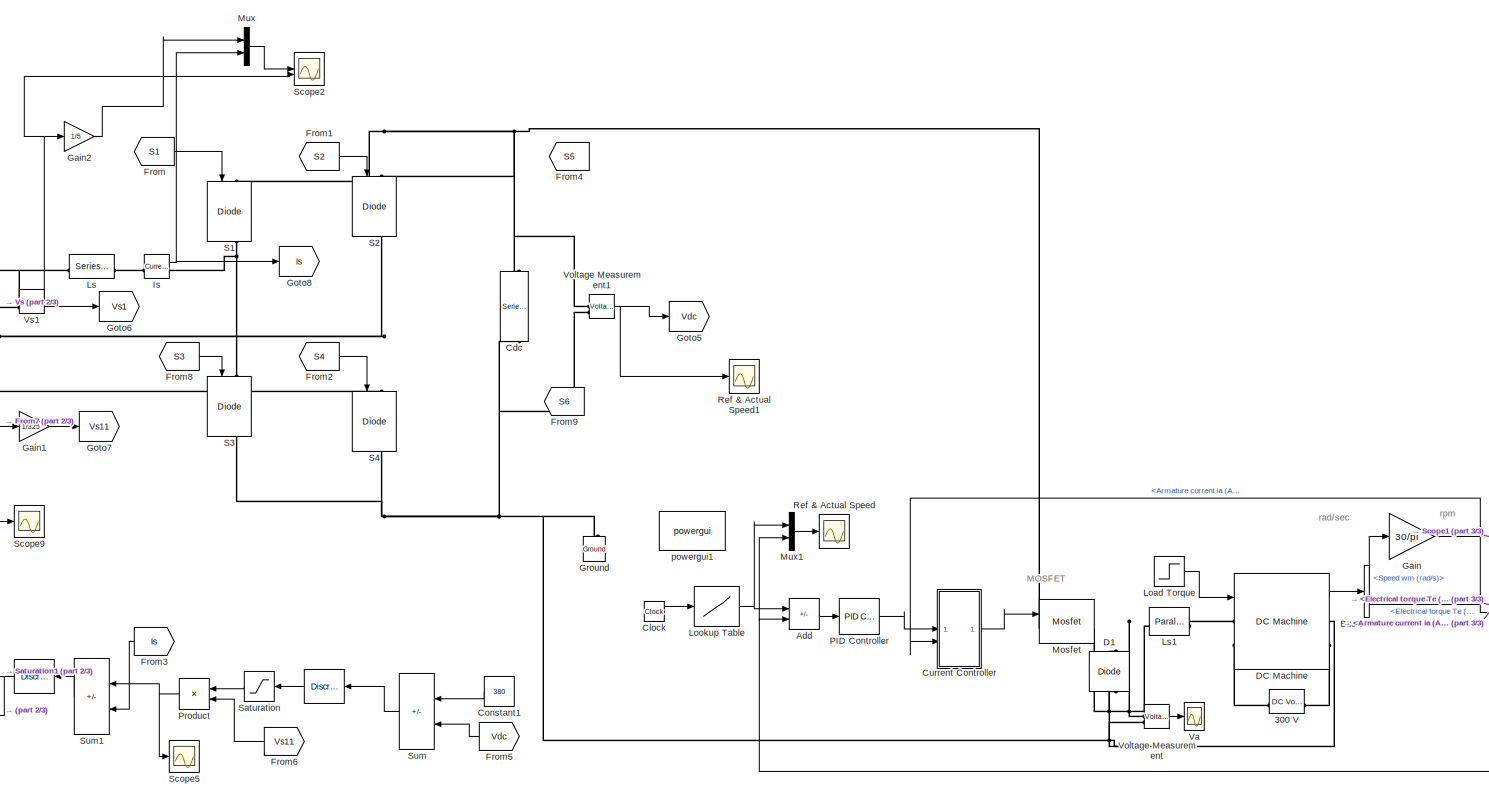
[diagram: root canvas - part 1/3, most of the canvas]
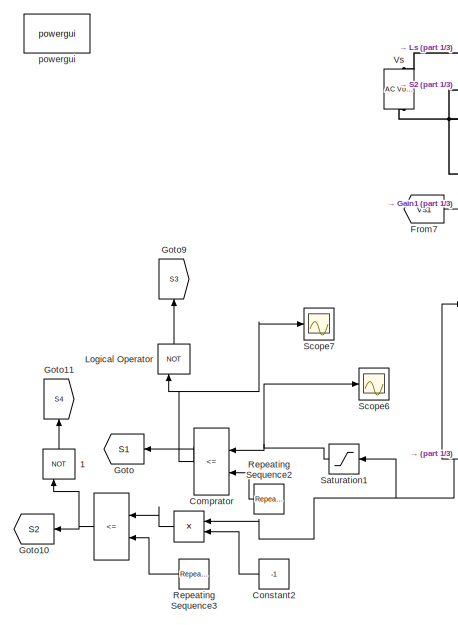
[diagram: root canvas - part 2/3, middle left region]
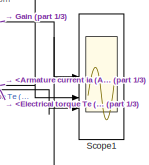
[diagram: root canvas - part 3/3, bottom right region]
MODEL slx_d72128d60dac
KIND model
CONFIG AbsTol = auto
CONFIG EnableMultiTasking = on
CONFIG FixedStep = auto
CONFIG MaxStep = auto
CONFIG MinStep = auto
CONFIG RelTol = 1e-3
CONFIG SampleTimeConstraint = Unconstrained
CONFIG SolverName = ode23t
CONFIG StartTime = 0.0
CONFIG StopTime = 3
BLOCK [Reference]    REF=powerlib_extras/Discrete 
Control Blocks/Discrete
PI Controller
  NameLocation = top
  SourceBlock = powerlib_extras/Discrete \nControl Blocks/Discrete\nPI Controller
  SourceType = Discrete PI Controller
BLOCK [Reference]      REF=powerlib_extras/Discrete 
Control Blocks/Discrete
PI Controller
  NameLocation = top
  SourceBlock = powerlib_extras/Discrete \nControl Blocks/Discrete\nPI Controller
  SourceType = Discrete PI Controller
BLOCK [RelationalOperator]      
  InputSameDT = off
  NameLocation = top
  Operator = <=
  OutDataTypeStr = boolean
BLOCK [Product]        
  NameLocation = top
  RndMeth = Zero
BLOCK [Logic]    1
  AllPortsSameDT = off
  NameLocation = right
  Operator = NOT
  OutDataTypeStr = boolean
BLOCK [Reference] 300 V  REF=spsDCVoltageSourceLib/DC Voltage Source
  AttributesFormatString = \n
  Description = source block
  LibrarySourceBlock = sps_lib/Sources/DC Voltage Source
  SourceBlock = spsDCVoltageSourceLib/DC Voltage Source
  SourceType = DC Voltage Source
BLOCK [Sum] Add
  IconShape = rectangular
  Inputs = +-
BLOCK [BusSelector] Bus Selector
  OutputSignals = Speed wm (rad/s),Armature current ia (A),Electrical torque Te (n m)
BLOCK [Reference] Cdc  REF=spsSeriesRLCBranchLib/Series RLC Branch
  LibrarySourceBlock = sps_lib/Passives/Series RLC Branch
  NameLocation = left
  SourceBlock = spsSeriesRLCBranchLib/Series RLC Branch
  SourceType = Series RLC Branch
BLOCK [Clock] Clock
BLOCK [RelationalOperator] Comprator 
  InputSameDT = off
  NameLocation = top
  Operator = <=
  OutDataTypeStr = boolean
BLOCK [Constant] Constant1
  NameLocation = top
  Value = 380
BLOCK [Constant] Constant2
  NameLocation = top
  Value = -1
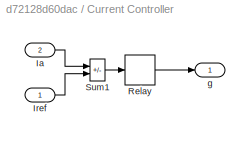
BLOCK [SubSystem] Current Controller
BLOCK [Inport] Current Controller/Ia
  Port = 2
BLOCK [Inport] Current Controller/Iref
BLOCK [Relay] Current Controller/Relay
  OffSwitchValue = -h/2
  OnSwitchValue = h/2
BLOCK [Sum] Current Controller/Sum1
  IconShape = rectangular
  InputSameDT = on
  Inputs = -+
  OutDataTypeStr = Inherit: Same as first input
  SaturateOnIntegerOverflow = on
BLOCK [Outport] Current Controller/g
  InitialOutput = 0
BLOCK [Reference] D1  REF=spsDiodeLib/Diode
  AttributesFormatString = \n
  LibrarySourceBlock = sps_lib/Power Electronics/Diode
  NameLocation = right
  SourceBlock = spsDiodeLib/Diode
  SourceType = Diode
BLOCK [Reference] DC Machine  REF=spsDCMachineLib/DC Machine
  AttributesFormatString = \n
  LibrarySourceBlock = sps_lib/Electrical Machines/DC Machine
  SourceBlock = spsDCMachineLib/DC Machine
  SourceType = DC machine
BLOCK [From] From
  GotoTag = S1
BLOCK [From] From1
  GotoTag = S2
BLOCK [From] From2
  GotoTag = S4
BLOCK [From] From3
  GotoTag = Is
  NameLocation = top
BLOCK [From] From4
  GotoTag = S5
BLOCK [From] From5
  GotoTag = Vdc
  NameLocation = top
BLOCK [From] From6
  GotoTag = Vs11
  NameLocation = top
BLOCK [From] From7
  GotoTag = Vs1
BLOCK [From] From8
  GotoTag = S3
BLOCK [From] From9
  GotoTag = S6
BLOCK [Gain] Gain
  Gain = 30/pi
BLOCK [Gain] Gain1
  Gain = 1/325
BLOCK [Gain] Gain2
  Gain = 1/5
BLOCK [Goto] Goto
  GotoTag = S1
  NameLocation = top
BLOCK [Goto] Goto10
  GotoTag = S2
  NameLocation = top
BLOCK [Goto] Goto11
  GotoTag = S4
  NameLocation = right
BLOCK [Goto] Goto5
  GotoTag = Vdc
BLOCK [Goto] Goto6
  GotoTag = Vs1
BLOCK [Goto] Goto7
  GotoTag = Vs11
BLOCK [Goto] Goto8
  GotoTag = Is
BLOCK [Goto] Goto9
  GotoTag = S3
  NameLocation = right
BLOCK [Reference] Ground  REF=spsGroundLib/Ground
  LibrarySourceBlock = sps_lib/Utilities/Ground
  NameLocation = right
  SourceBlock = spsGroundLib/Ground
  SourceType = Ground
BLOCK [Reference] Is  REF=spsCurrentMeasurementLib/Current Measurement
  LibrarySourceBlock = sps_lib/Sensors and Measurements/Current Measurement
  SourceBlock = spsCurrentMeasurementLib/Current Measurement
  SourceType = Current Measurement
BLOCK [Step] Load Torque
  After = 6
  SampleTime = 0
  Time = 0.75
BLOCK [Logic] Logical Operator
  AllPortsSameDT = off
  NameLocation = right
  Operator = NOT
  OutDataTypeStr = boolean
BLOCK [Lookup] Lookup Table
  InputValues = [0 0.5 1.0 1.1 1.5 1.6 2 2.1 2.5 3]
  SaturateOnIntegerOverflow = off
  Table = [0 1000 1000 850 850 1500 1500 500 500 500]
BLOCK [Reference] Ls  REF=spsSeriesRLCBranchLib/Series RLC Branch
  LibrarySourceBlock = sps_lib/Passives/Series RLC Branch
  SourceBlock = spsSeriesRLCBranchLib/Series RLC Branch
  SourceType = Series RLC Branch
BLOCK [Reference] Ls1  REF=spsParallelRLCBranchLib/Parallel RLC Branch
  AttributesFormatString = \n
  LibrarySourceBlock = sps_lib/Passives/Parallel RLC Branch
  NameLocation = top
  SourceBlock = spsParallelRLCBranchLib/Parallel RLC Branch
  SourceType = Parallel RLC Branch
BLOCK [Reference] Mosfet  REF=spsMosfetLib/Mosfet
  LibrarySourceBlock = sps_lib/Power Electronics/Mosfet
  SourceBlock = spsMosfetLib/Mosfet
  SourceType = Mosfet
BLOCK [Mux] Mux
  DisplayOption = bar
  Inputs = 2
BLOCK [Mux] Mux1
  DisplayOption = bar
  Inputs = 2
BLOCK [Reference] PID Controller  REF=slpidlib/PID Controller
  SourceBlock = slpidlib/PID Controller
  SourceType = PID 1dof
BLOCK [Product] Product
  NameLocation = top
  RndMeth = Zero
BLOCK [Scope] Ref & Actual Speed
  Floating = off
  NumInputPorts = 1
  ScopeSpecificationString = Simulink.scopes.TimeScopeBlockCfg('CurrentConfiguration', extmgr.ConfigurationSet(extmgr.Configuration('Core','General UI',true),extmgr.Configuration('Core','Source UI',true),extmgr.Configuration('Sources','WiredSimulink',true,'DataLoggingVariableName','ScopeData2','DataLoggingSaveFormat','StructureWithTime','DataLoggingMaxPoints','5000000','DataLoggingLimitDataPoints',true,'DataLoggingDecimation'...<+2575ch>
BLOCK [Scope] Ref & Actual Speed1
  Floating = off
  NumInputPorts = 1
  ScopeSpecificationString = Simulink.scopes.TimeScopeBlockCfg('CurrentConfiguration', extmgr.ConfigurationSet(extmgr.Configuration('Core','General UI',true),extmgr.Configuration('Core','Source UI',true),extmgr.Configuration('Sources','WiredSimulink',true,'DataLoggingVariableName','ScopeData1','DataLoggingSaveFormat','StructureWithTime','DataLoggingMaxPoints','5000000','DataLoggingLimitDataPoints',true,'DataLoggingDecimation'...<+1819ch>
BLOCK [Reference] Repeating Sequence2  REF=simulink/Sources/Repeating
Sequence
  NameLocation = top
  SourceBlock = simulink/Sources/Repeating\nSequence
  SourceType = Repeating table
BLOCK [Reference] Repeating Sequence3  REF=simulink/Sources/Repeating
Sequence
  NameLocation = top
  SourceBlock = simulink/Sources/Repeating\nSequence
  SourceType = Repeating table
BLOCK [Reference] S1  REF=spsIGBTDiodeLib/IGBT//Diode
  LibrarySourceBlock = sps_lib/Power Electronics/IGBT//Diode
  NameLocation = right
  SourceBlock = spsIGBTDiodeLib/IGBT//Diode
  SourceType = IGBT/Diode
BLOCK [Reference] S2  REF=spsIGBTDiodeLib/IGBT//Diode
  LibrarySourceBlock = sps_lib/Power Electronics/IGBT//Diode
  NameLocation = right
  SourceBlock = spsIGBTDiodeLib/IGBT//Diode
  SourceType = IGBT/Diode
BLOCK [Reference] S3  REF=spsIGBTDiodeLib/IGBT//Diode
  LibrarySourceBlock = sps_lib/Power Electronics/IGBT//Diode
  NameLocation = right
  SourceBlock = spsIGBTDiodeLib/IGBT//Diode
  SourceType = IGBT/Diode
BLOCK [Reference] S4  REF=spsIGBTDiodeLib/IGBT//Diode
  LibrarySourceBlock = sps_lib/Power Electronics/IGBT//Diode
  NameLocation = right
  SourceBlock = spsIGBTDiodeLib/IGBT//Diode
  SourceType = IGBT/Diode
BLOCK [Saturate] Saturation
  LowerLimit = -20
  NameLocation = top
  UpperLimit = 20
BLOCK [Saturate] Saturation1
  LowerLimit = -10
  NameLocation = top
  UpperLimit = 10
BLOCK [Scope] Scope1
  Floating = off
  NumInputPorts = 3
  ScopeSpecificationString = Simulink.scopes.TimeScopeBlockCfg('CurrentConfiguration', extmgr.ConfigurationSet(extmgr.Configuration('Core','General UI',true,'FigureColor',[1 1 1]),extmgr.Configuration('Core','Source UI',true),extmgr.Configuration('Sources','WiredSimulink',true,'DataLoggingVariableName','ScopeData1','DataLoggingSaveFormat','StructureWithTime','DataLoggingMaxPoints','5000000','DataLoggingLimitDataPoints',true,'...<+3643ch>
BLOCK [Scope] Scope2
  Floating = off
  NumInputPorts = 2
  ScopeSpecificationString = Simulink.scopes.TimeScopeBlockCfg('CurrentConfiguration', extmgr.ConfigurationSet(extmgr.Configuration('Core','General UI',true),extmgr.Configuration('Core','Source UI',true),extmgr.Configuration('Sources','WiredSimulink',true,'DataLoggingVariableName','ScopeData2','DataLoggingSaveFormat','StructureWithTime','DataLoggingDecimation','1','DataLoggingDecimateData',true),extmgr.Configuration('Visuals'...<+2380ch>
BLOCK [Scope] Scope5
  Floating = off
  NumInputPorts = 1
  ScopeSpecificationString = C++SS(StrPVP('Location','[5, 48, 1685, 1009]'),StrPVP('Open','off'),MxPVP('AxesTitles',54,'struct(''axes1'',''%<SignalLabel>'')'),MxPVP('ScopeGraphics',57,'struct(''FigureColor'',''[0.5 0.5 0.5]'',''AxesColor'',''[0 0 0]'',''AxesTickColor'',''[1 1 1]'',''LineColors'',''[1 1 0;1 0 1;0 1 1;1 0 0;0 1 0;0 0 1]'',''LineStyles'',''-|-|-|-|-|-'',''LineWidths'',''[0.5 0.5 0.5 0.5 0.5 0.5]'',''MarkerStyles...<+341ch>
BLOCK [Scope] Scope6
  Floating = off
  NumInputPorts = 1
  ScopeSpecificationString = Simulink.scopes.TimeScopeBlockCfg('CurrentConfiguration', extmgr.ConfigurationSet(extmgr.Configuration('Core','General UI',true),extmgr.Configuration('Core','Source UI',true),extmgr.Configuration('Sources','WiredSimulink',true,'DataLoggingVariableName','ScopeData5','DataLoggingSaveFormat','StructureWithTime','DataLoggingDecimation','1','DataLoggingDecimateData',true),extmgr.Configuration('Visuals'...<+1652ch>
BLOCK [Scope] Scope7
  Floating = off
  NumInputPorts = 1
  ScopeSpecificationString = C++SS(StrPVP('Location','[5, 47, 1685, 1009]'),StrPVP('Open','off'),MxPVP('AxesTitles',54,'struct(''axes1'',''%<SignalLabel>'')'),MxPVP('ScopeGraphics',57,'struct(''FigureColor'',''[0.5 0.5 0.5]'',''AxesColor'',''[0 0 0]'',''AxesTickColor'',''[1 1 1]'',''LineColors'',''[1 1 0;1 0 1;0 1 1;1 0 0;0 1 0;0 0 1]'',''LineStyles'',''-|-|-|-|-|-'',''LineWidths'',''[0.5 0.5 0.5 0.5 0.5 0.5]'',''MarkerStyles...<+334ch>
BLOCK [Scope] Scope9
  Floating = off
  NumInputPorts = 1
  ScopeSpecificationString = Simulink.scopes.TimeScopeBlockCfg('CurrentConfiguration', extmgr.ConfigurationSet(extmgr.Configuration('Core','General UI',true),extmgr.Configuration('Core','Source UI',true),extmgr.Configuration('Sources','WiredSimulink',true,'DataLoggingVariableName','ScopeData1','DataLoggingSaveFormat','StructureWithTime','DataLoggingDecimation','1','DataLoggingDecimateData',true),extmgr.Configuration('Visuals'...<+1754ch>
BLOCK [Sum] Sum
  IconShape = rectangular
  Inputs = |+-
  NameLocation = top
BLOCK [Sum] Sum1
  IconShape = rectangular
  Inputs = |+-
  NameLocation = top
BLOCK [Scope] Va
  Floating = off
  NumInputPorts = 1
  ScopeSpecificationString = Simulink.scopes.TimeScopeBlockCfg('CurrentConfiguration', extmgr.ConfigurationSet(extmgr.Configuration('Core','General UI',true),extmgr.Configuration('Core','Source UI',true),extmgr.Configuration('Sources','WiredSimulink',true,'DataLoggingSaveFormat','StructureWithTime','DataLoggingMaxPoints','5000000','DataLoggingLimitDataPoints',true,'DataLoggingDecimation','1','DataLoggingDecimateData',true,'Da...<+1716ch>
BLOCK [Reference] Voltage Measurement  REF=spsVoltageMeasurementLib/Voltage Measurement
  LibrarySourceBlock = sps_lib/Sensors and Measurements/Voltage Measurement
  SourceBlock = spsVoltageMeasurementLib/Voltage Measurement
  SourceType = Voltage Measurement
BLOCK [Reference] Voltage Measurement1  REF=spsVoltageMeasurementLib/Voltage Measurement
  LibrarySourceBlock = sps_lib/Sensors and Measurements/Voltage Measurement
  SourceBlock = spsVoltageMeasurementLib/Voltage Measurement
  SourceType = Voltage Measurement
BLOCK [Reference] Vs  REF=spsACVoltageSourceLib/AC Voltage Source
  LibrarySourceBlock = sps_lib/Sources/AC Voltage Source
  NameLocation = right
  SourceBlock = spsACVoltageSourceLib/AC Voltage Source
  SourceType = AC Voltage Source
BLOCK [Reference] Vs1  REF=spsVoltageMeasurementLib/Voltage Measurement
  LibrarySourceBlock = sps_lib/Sensors and Measurements/Voltage Measurement
  SourceBlock = spsVoltageMeasurementLib/Voltage Measurement
  SourceType = Voltage Measurement
BLOCK [Reference] powergui  REF=spspowerguiLib/powergui
  Priority = 1
  SourceBlock = spspowerguiLib/powergui
  SourceType = PSB option menu block
BLOCK [Reference] powergui1  REF=spspowerguiLib/powergui
  Priority = 1
  SourceBlock = spspowerguiLib/powergui
  SourceType = PSB option menu block
ANNOTATION (root): MOSFET
ANNOTATION (root): rad/sec
ANNOTATION (root): rpm
LINE        :1 ->      :1
NET      :1 ->    1:1, Goto10:1
LINE    1:1 -> Goto11:1
LINE    :1 -> Saturation:1
NET  :1 ->        :1, Saturation1:1, Scope9:1
LINE Add:1 -> PID Controller:1
LINE Bus Selector:1 -> Gain:1
NET Bus Selector:2 -> Current Controller:2, Scope1:2
LINE Bus Selector:3 -> Scope1:3
LINE Clock:1 -> Lookup Table:1
NET Comprator :1 -> Goto:1, Logical Operator:1, Scope7:1
LINE Constant1:1 -> Sum:1
LINE Constant2:1 ->        :2
LINE Current Controller/Ia:1 -> Current Controller/Sum1:1
LINE Current Controller/Iref:1 -> Current Controller/Sum1:2
LINE Current Controller/Relay:1 -> Current Controller/g:1
LINE Current Controller/Sum1:1 -> Current Controller/Relay:1
LINE Current Controller:1 -> Mosfet:1
LINE DC Machine:1 -> Bus Selector:1
LINE From1:1 -> S2:1
LINE From2:1 -> S4:1
LINE From3:1 -> Sum1:2
LINE From5:1 -> Sum:2
LINE From6:1 -> Product:2
LINE From7:1 -> Gain1:1
LINE From8:1 -> S3:1
LINE From:1 -> S1:1
LINE Gain1:1 -> Goto7:1
LINE Gain2:1 -> Mux:1
NET Gain:1 -> Add:2, Mux1:2, Scope1:1
NET Is:1 -> Goto8:1, Mux:2
LINE Load Torque:1 -> DC Machine:1
LINE Logical Operator:1 -> Goto9:1
NET Lookup Table:1 -> Add:1, Mux1:1
LINE Mux1:1 -> Ref & Actual Speed:1
LINE Mux:1 -> Scope2:1
LINE PID Controller:1 -> Current Controller:1
NET Product:1 -> Scope5:1, Sum1:1
LINE Repeating Sequence2:1 -> Comprator :2
LINE Repeating Sequence3:1 ->      :2
NET Saturation1:1 -> Comprator :1, Scope6:1
LINE Saturation:1 -> Product:1
LINE Sum1:1 ->  :1
LINE Sum:1 ->    :1
NET Voltage Measurement1:1 -> Goto5:1, Ref & Actual Speed1:1
LINE Voltage Measurement:1 -> Va:1
NET Vs1:1 -> Gain2:1, Goto6:1, Scope2:2
PLINE 300 V:LConn1 -- DC Machine:RConn2
PLINE 300 V:RConn1 -- DC Machine:LConn2
PNET net1: Cdc:LConn1 -- Mosfet:LConn1 -- S1:LConn1 -- S2:LConn1 -- Voltage Measurement1:LConn1
PNET net2: Cdc:RConn1 -- D1:LConn1 -- DC Machine:RConn1 -- Ground:LConn1 -- S3:RConn1 -- S4:RConn1 -- Voltage Measurement1:LConn2 -- Voltage Measurement:LConn2
PNET net3: D1:RConn1 -- Ls1:LConn1 -- Mosfet:RConn1 -- Voltage Measurement:LConn1
PLINE DC Machine:LConn1 -- Ls1:RConn1
PLINE Is:LConn1 -- Ls:RConn1
PNET net4: Is:RConn1 -- S1:RConn1 -- S3:LConn1
PNET net5: Ls:LConn1 -- Vs1:LConn1 -- Vs:RConn1
PNET net6: S2:RConn1 -- S4:LConn1 -- Vs1:LConn2 -- Vs:LConn1
note: NET lines group one-source signal fan-out (src -> all destinations, sorted); 1:1 wires keep LINE; PNET lines group multi-terminal physical nets as a canonical sorted terminal list (undirected conserving connections); 2-terminal nets keep the pairwise PLINE form
